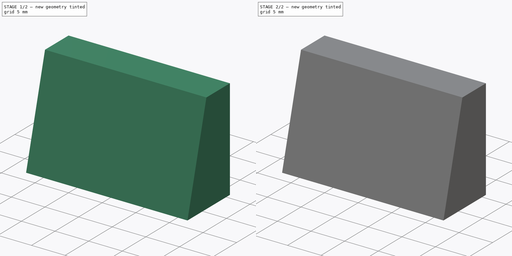
[diagram: build sequence overview — one tinted view per stage of 2, left to right]
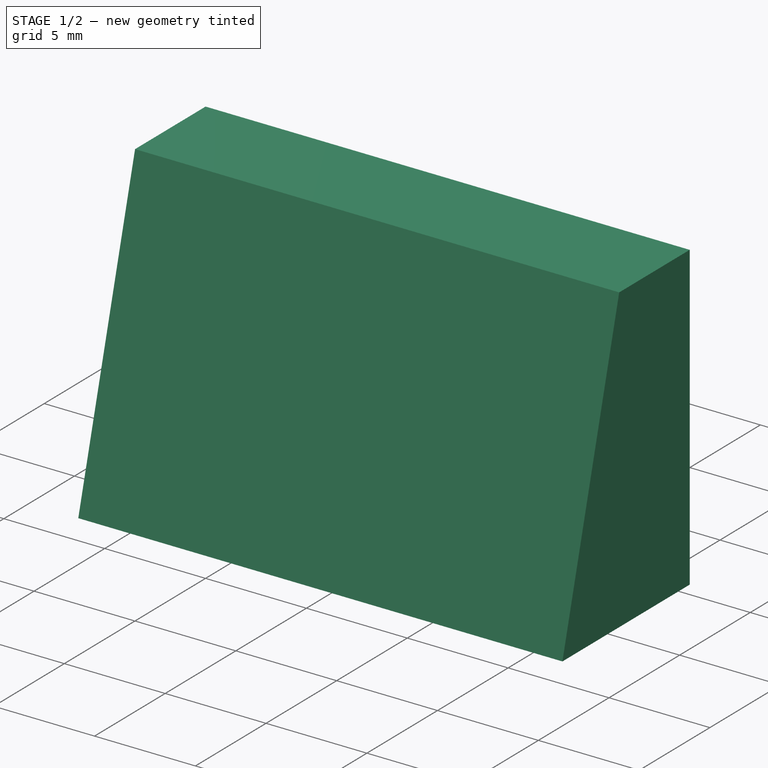
[diagram: stage 1 of 2 — iso view after this stage's code; geometry added in this stage tinted green]
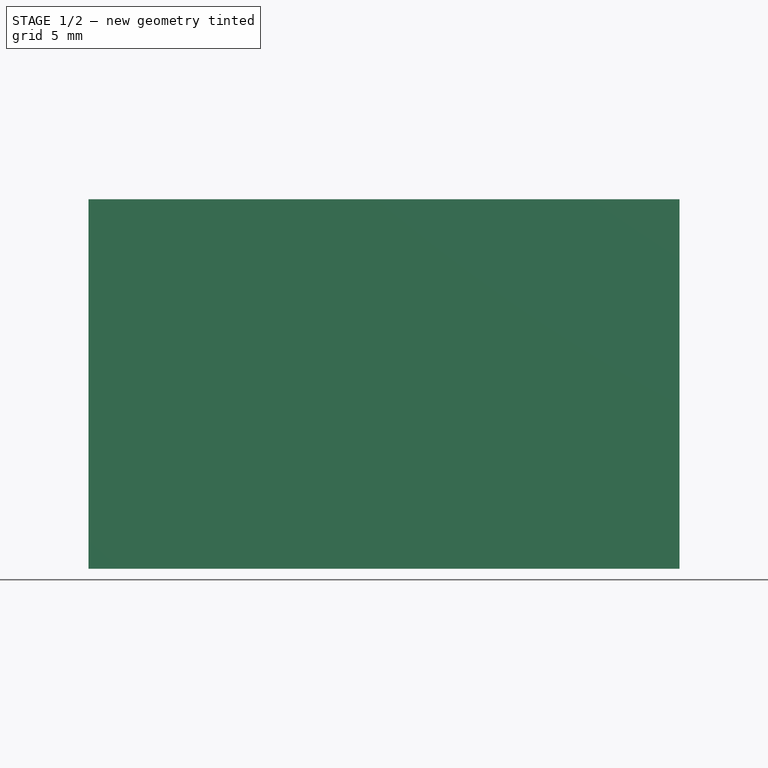
[diagram: stage 1 of 2 — front view after this stage's code; geometry added in this stage tinted green]
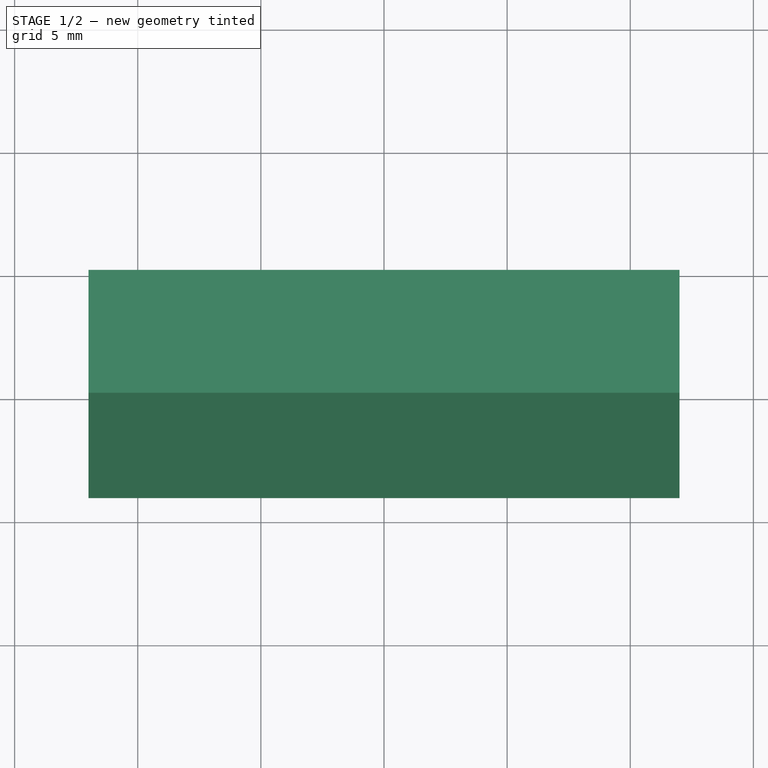
[diagram: stage 1 of 2 — top view after this stage's code; geometry added in this stage tinted green]
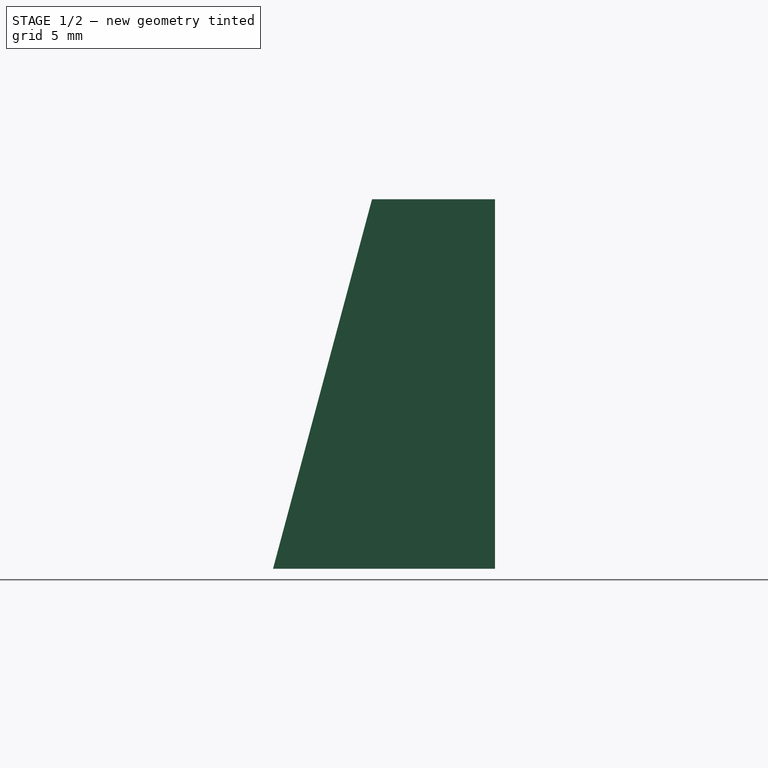
[diagram: stage 1 of 2 — right view after this stage's code; geometry added in this stage tinted green]
FCSTD DOCUMENT  (FreeCAD 0.21R33668 +26 (Git))
Label: led_mask
License: All rights reserved
LicenseURL: https://en.wikipedia.org/wiki/All_rights_reserved
objects: Sketcher::SketchObject×3, PartDesign::Pocket×3, PartDesign::Pad×1, Part::Part2DObjectPython×1, PartDesign::Body×1
note: 13 computed .brp shape members not serialized (recipe doc carries the construction recipe); baked Part::Feature solids carry a one-line shape summary decoded from their .brp

FEATURE [Sketcher::SketchObject] Sketch
  FullyConstrained = true
  MapMode = 5
  Placement = pos=(0,0,0) rot=(1,0,0;1.5708rad)
  Support = -> [XZ_Plane]
  sketch-geometry (4):
    g0: LineSegment StartX=-12 StartY=7.5 StartZ=0 EndX=12 EndY=7.5 EndZ=0
    g1: LineSegment StartX=12 StartY=7.5 StartZ=0 EndX=12 EndY=-7.5 EndZ=0
    g2: LineSegment StartX=12 StartY=-7.5 StartZ=0 EndX=-12 EndY=-7.5 EndZ=0
    g3: LineSegment StartX=-12 StartY=-7.5 StartZ=0 EndX=-12 EndY=7.5 EndZ=0
  constraints (11):
    c: Horizontal(g0)
    c: Horizontal(g2)
    c: Vertical(g1)
    c: Vertical(g3)
    c: DistanceX(g3,g1) = 24
    c: DistanceY(g2,g0) = 15
    c: Symmetric(g0,g2,g-1)
    c: Coincident(g0,g3)
    c: Coincident(g0,g1)
    c: Coincident(g2,g1)
    c: Coincident(g2,g3)
FEATURE [PartDesign::Pad] Pad
  Direction = (0,-1,2e-16)
  Length = 10
  Length2 = 10
  Placement = pos=(0,0,0) rot=(1,0,0;1.5708rad)
  Profile = -> Sketch
  ReferenceAxis = -> Sketch [N_Axis]
  Type = 0
FEATURE [Sketcher::SketchObject] Sketch001
  FullyConstrained = false
  MapMode = 5
  Placement = pos=(0,0,0) rot=(0.57735,0.57735,0.57735;2.0944rad)
  Support = -> [YZ_Plane]
  sketch-geometry (8):
    g0: LineSegment StartX=-11.5678 StartY=10.201 StartZ=0 EndX=-33.0383 EndY=9.87494 EndZ=0
    g1: LineSegment StartX=-33.0383 StartY=9.87494 StartZ=0 EndX=-33.0383 EndY=-12.8905 EndZ=0
    g2: LineSegment StartX=-33.0383 StartY=-12.8905 StartZ=0 EndX=-13.6676 EndY=-12.8905 EndZ=0
    g3: LineSegment StartX=-4.99189 StartY=7.5 StartZ=0 EndX=-9.01113 EndY=-7.5 EndZ=0
    g4: LineSegment StartX=-4.99189 StartY=7.5 StartZ=0 EndX=-2.01493 EndY=7.5 EndZ=0
    g5: LineSegment StartX=-9.01113 StartY=-7.5 StartZ=0 EndX=-6.12798 EndY=-7.5 EndZ=0
    g6: LineSegment StartX=-2.01493 StartY=7.5 StartZ=0 EndX=-11.5678 EndY=10.201 EndZ=0
    g7: LineSegment StartX=-6.12798 StartY=-7.5 StartZ=0 EndX=-13.6676 EndY=-12.8905 EndZ=0
  constraints (15):
    c: Coincident(g1,g0)
    c: Vertical(g1)
    c: Coincident(g2,g1)
    c: Horizontal(g2)
    c: Horizontal(g4)
    c: Horizontal(g5)
    c: DistanceY(g-1,g4) = 7.5
    c: Coincident(g6,g4)
    c: Coincident(g6,g0)
    c: Coincident(g7,g5)
    c: Coincident(g7,g2)
    c: Angle(g5,g3) = 1.309
    c: Coincident(g5,g3)
    c: Coincident(g4,g3)
    c: DistanceY(g5,g-1) = 7.5
FEATURE [PartDesign::Pocket] Pocket
  BaseFeature = -> Pad
  Direction = (-1,2e-16,-3e-16)
  Length = 100
  Length2 = 100
  Placement = pos=(0,0,0) rot=(1,0,0;1.5708rad)
  Profile = -> Sketch001
  ReferenceAxis = -> Sketch001 [N_Axis]
  Type = 4
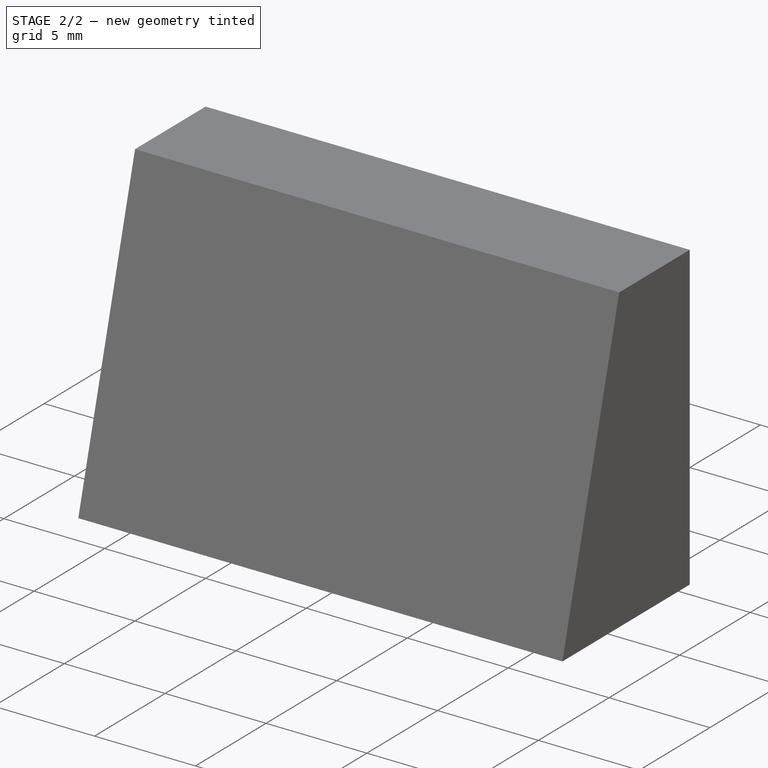
[diagram: stage 2 of 2 — iso view after this stage's code; geometry added in this stage tinted green]
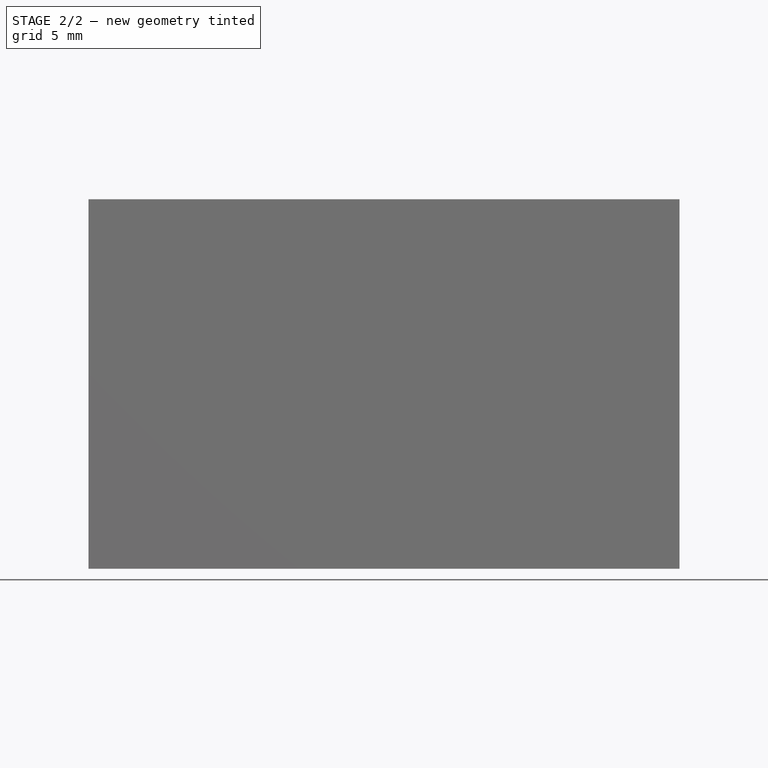
[diagram: stage 2 of 2 — front view after this stage's code; geometry added in this stage tinted green]
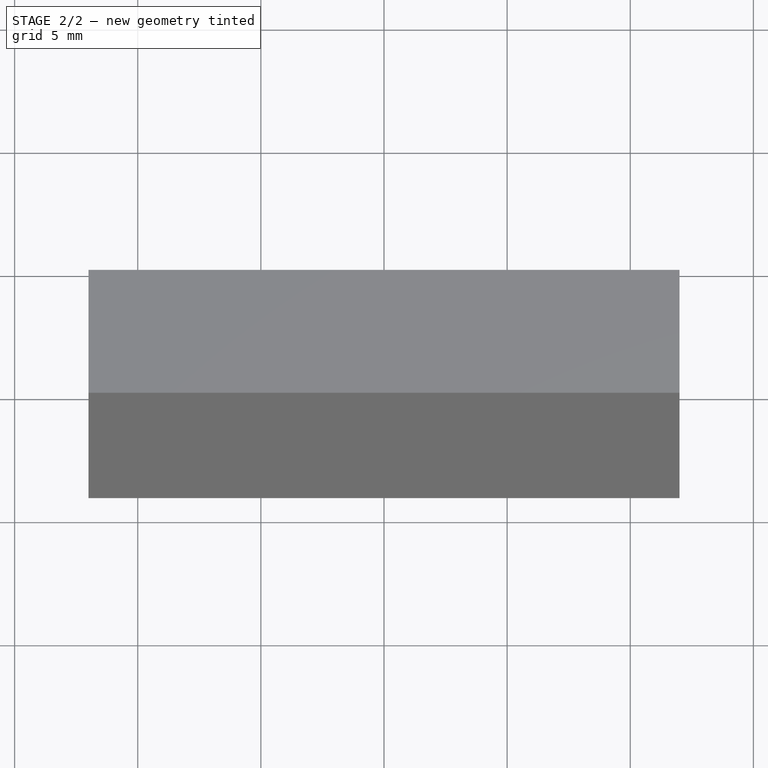
[diagram: stage 2 of 2 — top view after this stage's code; geometry added in this stage tinted green]
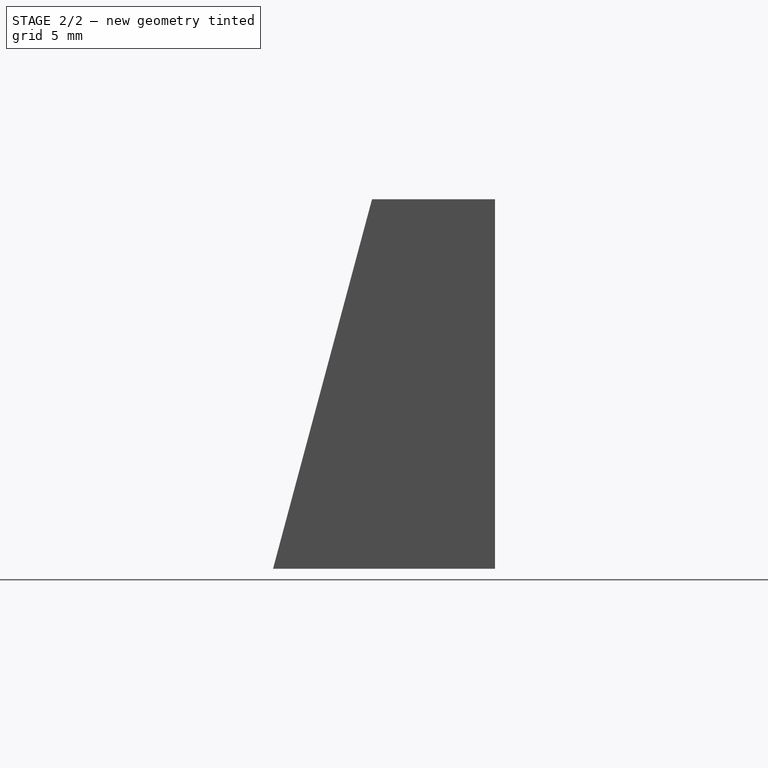
[diagram: stage 2 of 2 — right view after this stage's code; geometry added in this stage tinted green]
FEATURE [Sketcher::SketchObject] Sketch002
  FullyConstrained = false
  MapMode = 5
  Placement = pos=(0,0,0) rot=(0.57735,0.57735,0.57735;2.0944rad)
  Support = -> [YZ_Plane]
  sketch-geometry (4):
    g0: LineSegment StartX=0 StartY=6.31024 StartZ=0 EndX=-4.50829 EndY=6.31024 EndZ=0
    g1: LineSegment StartX=0 StartY=-6.82983 StartZ=0 EndX=-8.02916 EndY=-6.82983 EndZ=0
    g2: LineSegment StartX=-8.02916 StartY=-6.82983 StartZ=0 EndX=-4.50829 EndY=6.31024 EndZ=0
    g3: LineSegment StartX=0 StartY=6.31024 StartZ=0 EndX=0 EndY=-6.82983 EndZ=0
  constraints (9):
    c: PointOnObject(g0,g-2)
    c: Horizontal(g0)
    c: PointOnObject(g1,g-2)
    c: Horizontal(g1)
    c: Coincident(g2,g1)
    c: Coincident(g2,g0)
    c: Angle(g1,g2) = 1.309
    c: Coincident(g3,g0)
    c: Coincident(g3,g1)
FEATURE [PartDesign::Pocket] Pocket001
  BaseFeature = -> Pocket
  Direction = (-1,2e-16,-3e-16)
  Length = 11
  Length2 = 11
  Placement = pos=(0,0,0) rot=(1,0,0;1.5708rad)
  Profile = -> Sketch002
  ReferenceAxis = -> Sketch002 [N_Axis]
  Type = 4
FEATURE [Part::Part2DObjectPython] ShapeString  # Draft 2D object (typed FeaturePython)
  FontFile = <path>
  MakeFace = true
  Placement = pos=(-2.62,-4.01765,5.79022) rot=(0,-0.608761,0.793353;3.14159rad)
  Size = 3.2
  String = NTR
  Tracking = 0
FEATURE [PartDesign::Pocket] Pocket002
  BaseFeature = -> Pocket001
  Direction = (0,0.965926,-0.258819)
  Length = 1.2
  Length2 = 5
  Placement = pos=(0,0,0) rot=(1,0,0;1.5708rad)
  Profile = -> ShapeString
  ReferenceAxis = -> ShapeString [N_Axis]
  Reversed = true
  Type = 0
FEATURE [PartDesign::Body] Body
  Group = -> [Sketch,Pad,Sketch001,Pocket,Sketch002,Pocket001,ShapeString,Pocket002]
  Origin = -> Origin
  Tip = -> Pocket002
note: 1 file-system path scrubbed to <path> (originals preserved in the JSON sidecar)
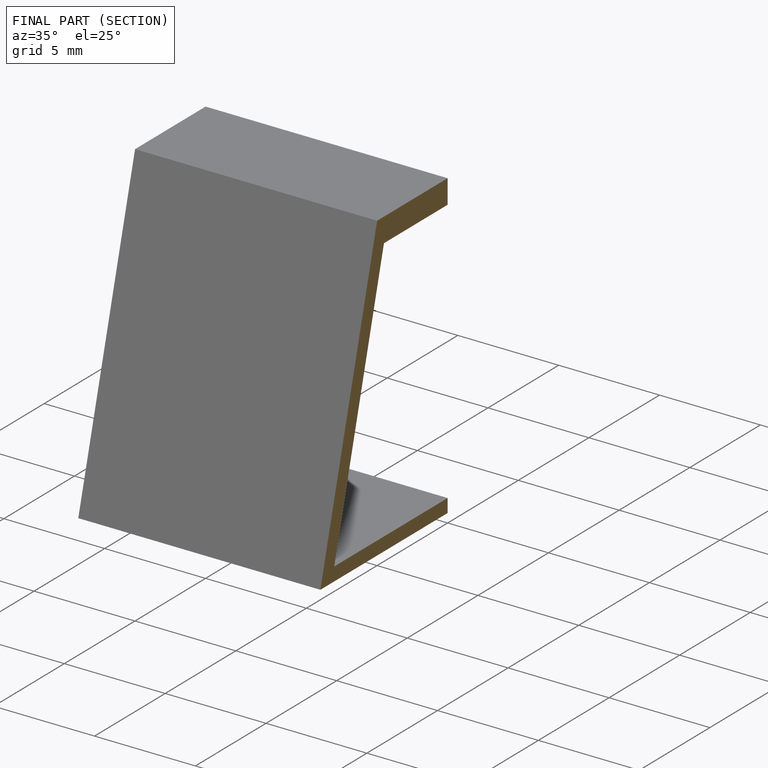
[diagram: finished part — half-section view (interior)]
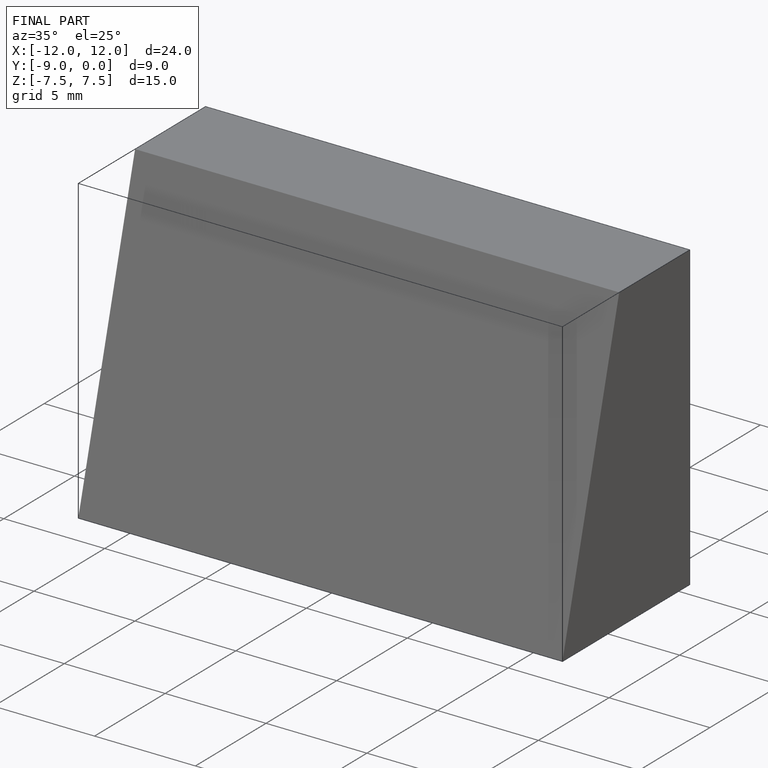
[diagram: finished part — iso view with bounding-box wireframe]
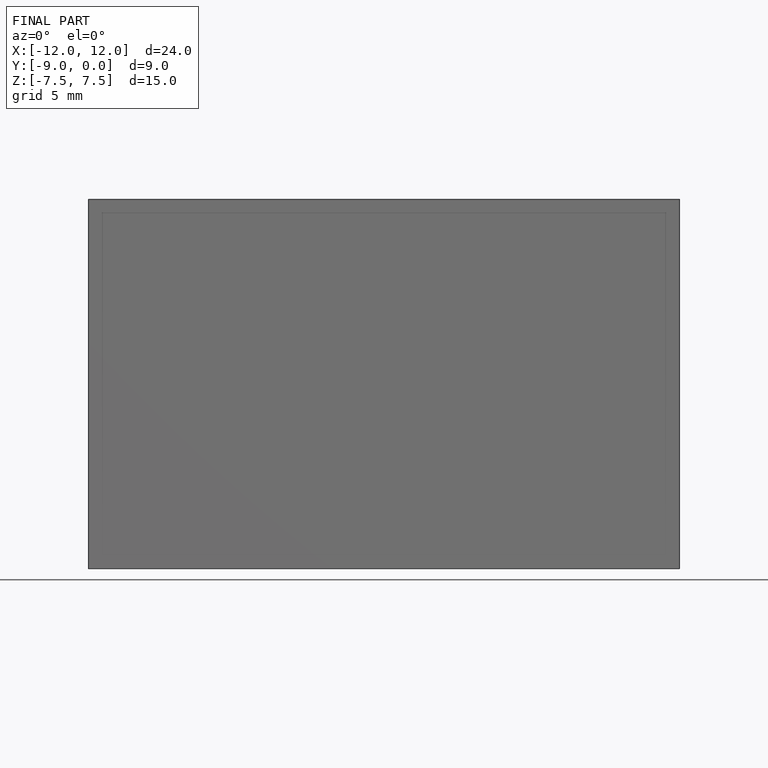
[diagram: finished part — front view with bounding-box wireframe]
